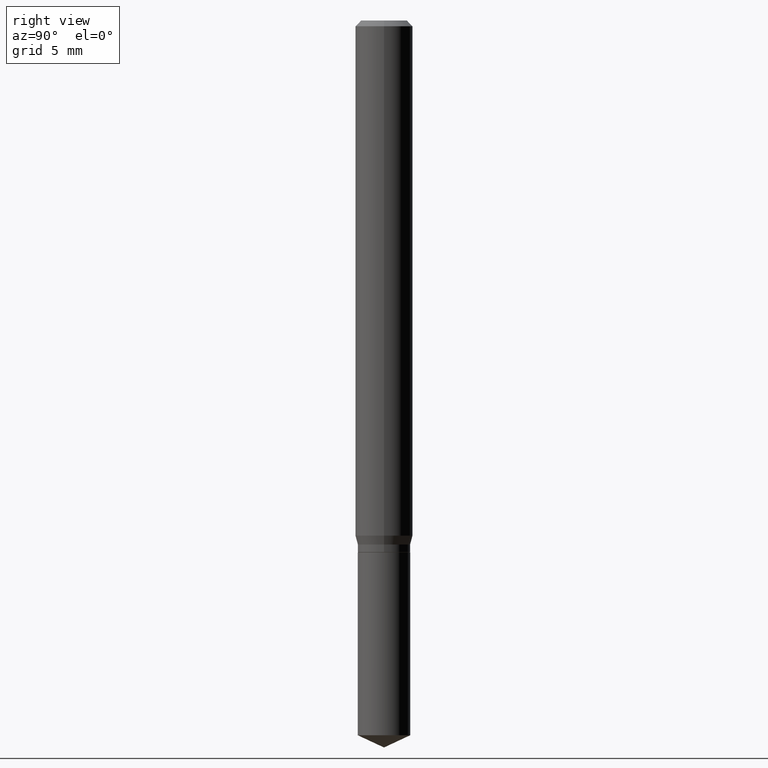
[diagram: clean part render]
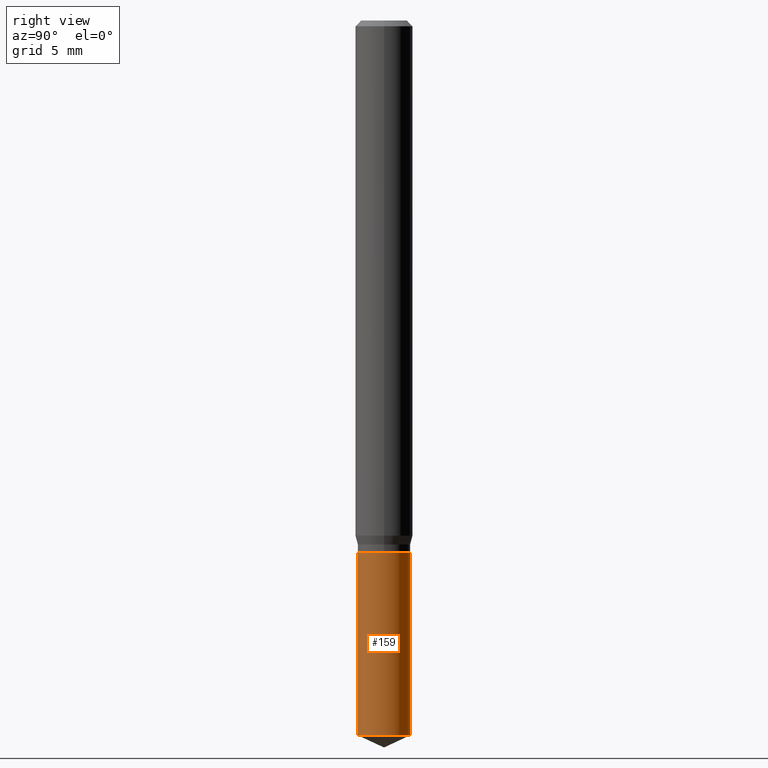
[diagram: same view with one face highlighted and labeled with its STEP entity id]
A machine part, right view. The second image highlights one B-rep face of the part: STEP entity #159.
In plain terms, the highlighted cylindrical surface (edge-blend (fillet) strip) has radius 1.3754 mm, axis along (-0, 0, 1).
Its self-contained STEP definition (entity closure, byte-faithful):
#14 = CARTESIAN_POINT ( 'NONE',  ( 3.596874846011567459E-29, -5.135502916392647345E-15, -1.470849440310906919 ) ) ;
#20 = VECTOR ( 'NONE', #79, 39.37007874015748143 ) ;
#35 = DIRECTION ( 'NONE',  ( -2.445358326776455510E-29, 3.491639551644474585E-15, 1.000000000000000000 ) ) ;
#39 = FACE_OUTER_BOUND ( 'NONE', #210, .T. ) ;
#79 = DIRECTION ( 'NONE',  ( -2.445358326776455790E-29, 3.491639551644474585E-15, 1.000000000000000000 ) ) ;
#80 = CARTESIAN_POINT ( 'NONE',  ( 3.847588914141209009E-16, 0.05414999999999617342, -1.094500000000000028 ) ) ;
#87 = DIRECTION ( 'NONE',  ( -6.982962677686265922E-15, -1.000000000000000000, 2.522481988609661405E-15 ) ) ;
#103 = EDGE_CURVE ( 'NONE', #463, #285, #457, .T. ) ;
#109 = DIRECTION ( 'NONE',  ( -6.982962677686265922E-15, -1.000000000000000000, 2.522481988609661405E-15 ) ) ;
#136 = AXIS2_PLACEMENT_3D ( 'NONE', #14, #393, #239 ) ;
#139 = AXIS2_PLACEMENT_3D ( 'NONE', #224, #35, #109 ) ;
#159 = ADVANCED_FACE ( 'NONE', ( #39 ), #193, .T. ) ;
#182 = VERTEX_POINT ( 'NONE', #346 ) ;
#185 = EDGE_CURVE ( 'NONE', #370, #463, #325, .T. ) ;
#193 = CYLINDRICAL_SURFACE ( 'NONE', #139, 0.05414999999999999675 ) ;
#197 = EDGE_CURVE ( 'NONE', #182, #285, #386, .T. ) ;
#210 = EDGE_LOOP ( 'NONE', ( #406, #361, #240, #311 ) ) ;
#224 = CARTESIAN_POINT ( 'NONE',  ( 2.676565608369631794E-29, -3.821426325363822773E-15, -1.094499999999999806 ) ) ;
#234 = CARTESIAN_POINT ( 'NONE',  ( 3.847588914141302193E-16, 0.05414999999999617342, -1.094500000000000028 ) ) ;
#238 = AXIS2_PLACEMENT_3D ( 'NONE', #428, #310, #87 ) ;
#239 = DIRECTION ( 'NONE',  ( -6.982962677686265922E-15, -1.000000000000000000, 5.044963977219322809E-15 ) ) ;
#240 = ORIENTED_EDGE ( 'NONE', *, *, #197, .F. ) ;
#285 = VERTEX_POINT ( 'NONE', #234 ) ;
#288 = CARTESIAN_POINT ( 'NONE',  ( -3.781274289966845089E-16, -0.05415000000000382008, -1.094499999999999806 ) ) ;
#310 = DIRECTION ( 'NONE',  ( -2.445358326776455510E-29, 3.491639551644474585E-15, 1.000000000000000000 ) ) ;
#311 = ORIENTED_EDGE ( 'NONE', *, *, #409, .F. ) ;
#317 = LINE ( 'NONE', #288, #462 ) ;
#325 = CIRCLE ( 'NONE', #136, 0.05414999999999999675 ) ;
#330 = DIRECTION ( 'NONE',  ( -2.445358326776455790E-29, 3.491639551644474585E-15, 1.000000000000000000 ) ) ;
#346 = CARTESIAN_POINT ( 'NONE',  ( -3.781274289966845089E-16, -0.05415000000000382008, -1.094499999999999806 ) ) ;
#361 = ORIENTED_EDGE ( 'NONE', *, *, #103, .T. ) ;
#370 = VERTEX_POINT ( 'NONE', #481 ) ;
#386 = CIRCLE ( 'NONE', #238, 0.05414999999999999675 ) ;
#393 = DIRECTION ( 'NONE',  ( -2.445358326776455510E-29, 3.491639551644474585E-15, 1.000000000000000000 ) ) ;
#396 = CARTESIAN_POINT ( 'NONE',  ( 3.847588914141302686E-16, 0.05414999999999487584, -1.470849440310907363 ) ) ;
#406 = ORIENTED_EDGE ( 'NONE', *, *, #185, .T. ) ;
#409 = EDGE_CURVE ( 'NONE', #370, #182, #317, .T. ) ;
#428 = CARTESIAN_POINT ( 'NONE',  ( 2.676565608369631794E-29, -3.821426325363822773E-15, -1.094499999999999806 ) ) ;
#457 = LINE ( 'NONE', #80, #20 ) ;
#462 = VECTOR ( 'NONE', #330, 39.37007874015748143 ) ;
#463 = VERTEX_POINT ( 'NONE', #396 ) ;
#481 = CARTESIAN_POINT ( 'NONE',  ( -3.781274289966754370E-16, -0.05415000000000514541, -1.470849440310906697 ) ) ;